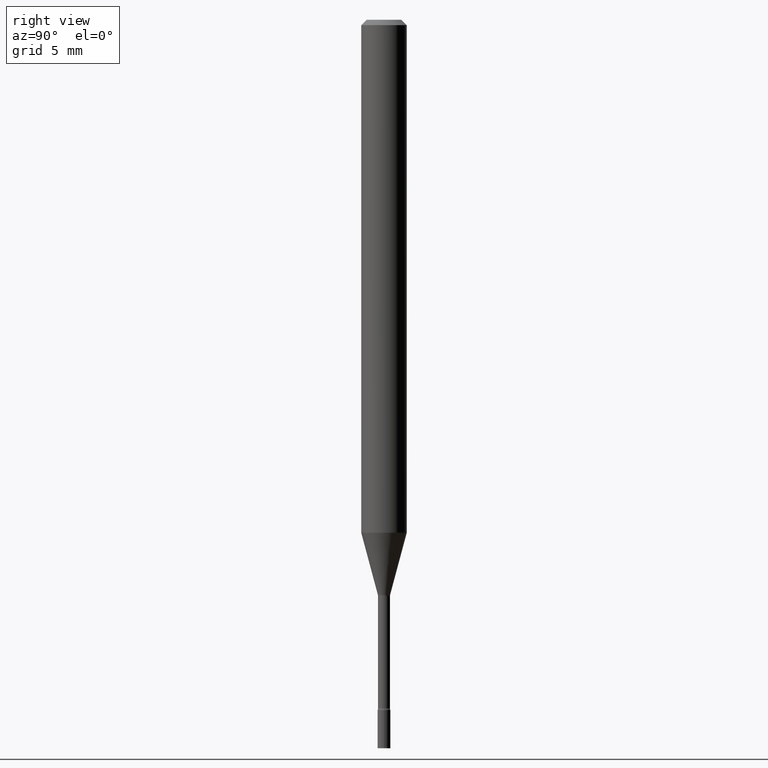
[diagram: clean part render]
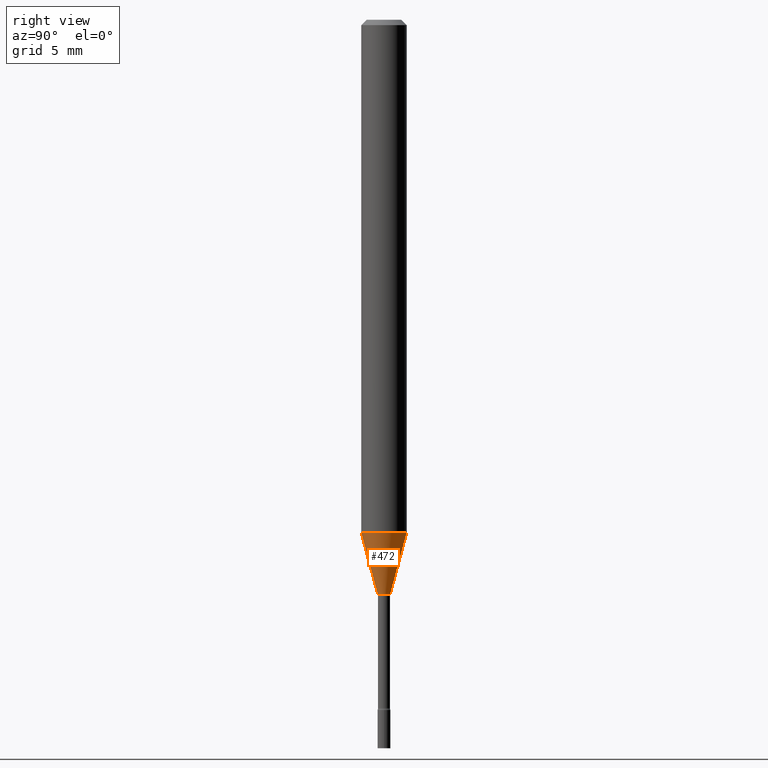
[diagram: same view with one face highlighted and labeled with its STEP entity id]
A machine part, right view. The second image highlights one B-rep face of the part: STEP entity #472.
In plain terms, the highlighted conical surface has half-angle 15 deg.
Its self-contained STEP definition (entity closure, byte-faithful):
#80 = ORIENTED_EDGE ( 'NONE', *, *, #97, .F. ) ;
#90 = DIRECTION ( 'NONE',  ( -6.982962677686266711E-15, -1.000000000000000000, 0.000000000000000000 ) ) ;
#95 = CARTESIAN_POINT ( 'NONE',  ( -1.184388162973470360E-16, -0.01696111260566949067, -1.578092501787273116 ) ) ;
#97 = EDGE_CURVE ( 'NONE', #98, #133, #152, .T. ) ;
#98 = VERTEX_POINT ( 'NONE', #450 ) ;
#99 = CARTESIAN_POINT ( 'NONE',  ( 4.440892098500969316E-16, 0.06249999999999507339, -1.408139060311453639 ) ) ;
#108 = VECTOR ( 'NONE', #283, 39.37007874015748143 ) ;
#129 = DIRECTION ( 'NONE',  ( -1.807323732225325801E-15, -0.2588190451025175753, 0.9659258262890690894 ) ) ;
#133 = VERTEX_POINT ( 'NONE', #99 ) ;
#152 = CIRCLE ( 'NONE', #366, 0.06250000000000000000 ) ;
#174 = VECTOR ( 'NONE', #129, 39.37007874015748854 ) ;
#199 = CARTESIAN_POINT ( 'NONE',  ( 3.859222870935241338E-29, -5.509813379629055980E-15, -1.578092501787273116 ) ) ;
#201 = CARTESIAN_POINT ( 'NONE',  ( -1.184388162973470360E-16, -0.01696111260566949067, -1.578092501787273116 ) ) ;
#225 = AXIS2_PLACEMENT_3D ( 'NONE', #199, #318, #331 ) ;
#238 = FACE_OUTER_BOUND ( 'NONE', #405, .T. ) ;
#251 = CARTESIAN_POINT ( 'NONE',  ( 2.823025816868859611E-16, 0.01696111260565846823, -1.578092501787273116 ) ) ;
#272 = VERTEX_POINT ( 'NONE', #251 ) ;
#283 = DIRECTION ( 'NONE',  ( 1.839019923739595977E-15, 0.2588190451025243477, 0.9659258262890673130 ) ) ;
#292 = CARTESIAN_POINT ( 'NONE',  ( 3.859222870935241338E-29, -5.509813379629055980E-15, -1.578092501787273116 ) ) ;
#304 = ORIENTED_EDGE ( 'NONE', *, *, #488, .F. ) ;
#318 = DIRECTION ( 'NONE',  ( -2.445498515812265723E-29, 3.491438792966129637E-15, 1.000000000000000000 ) ) ;
#326 = DIRECTION ( 'NONE',  ( -2.445498515812265723E-29, 3.491438792966129637E-15, 1.000000000000000000 ) ) ;
#331 = DIRECTION ( 'NONE',  ( -6.982962677686266711E-15, -1.000000000000000000, 0.000000000000000000 ) ) ;
#337 = CIRCLE ( 'NONE', #225, 0.01696111260566397771 ) ;
#342 = ORIENTED_EDGE ( 'NONE', *, *, #391, .T. ) ;
#346 = CONICAL_SURFACE ( 'NONE', #347, 0.01696111260566397771, 0.2617993877991496299 ) ;
#347 = AXIS2_PLACEMENT_3D ( 'NONE', #292, #407, #90 ) ;
#357 = VERTEX_POINT ( 'NONE', #95 ) ;
#366 = AXIS2_PLACEMENT_3D ( 'NONE', #464, #326, #383 ) ;
#373 = LINE ( 'NONE', #201, #174 ) ;
#383 = DIRECTION ( 'NONE',  ( -6.982962677686265922E-15, -1.000000000000000000, 4.370956789862821150E-15 ) ) ;
#391 = EDGE_CURVE ( 'NONE', #272, #133, #462, .T. ) ;
#405 = EDGE_LOOP ( 'NONE', ( #424, #342, #80, #304 ) ) ;
#407 = DIRECTION ( 'NONE',  ( -2.445498515812265723E-29, 3.491438792966129637E-15, 1.000000000000000000 ) ) ;
#424 = ORIENTED_EDGE ( 'NONE', *, *, #441, .T. ) ;
#441 = EDGE_CURVE ( 'NONE', #357, #272, #337, .T. ) ;
#450 = CARTESIAN_POINT ( 'NONE',  ( -4.364351673553573540E-16, -0.06250000000000494049, -1.408139060311453195 ) ) ;
#462 = LINE ( 'NONE', #497, #108 ) ;
#464 = CARTESIAN_POINT ( 'NONE',  ( 3.443601982048937834E-29, -4.916431341062281529E-15, -1.408139060311453417 ) ) ;
#472 = ADVANCED_FACE ( 'NONE', ( #238 ), #346, .T. ) ;
#488 = EDGE_CURVE ( 'NONE', #357, #98, #373, .T. ) ;
#497 = CARTESIAN_POINT ( 'NONE',  ( 1.205159535236746208E-16, 0.01696111260565846823, -1.578092501787273116 ) ) ;